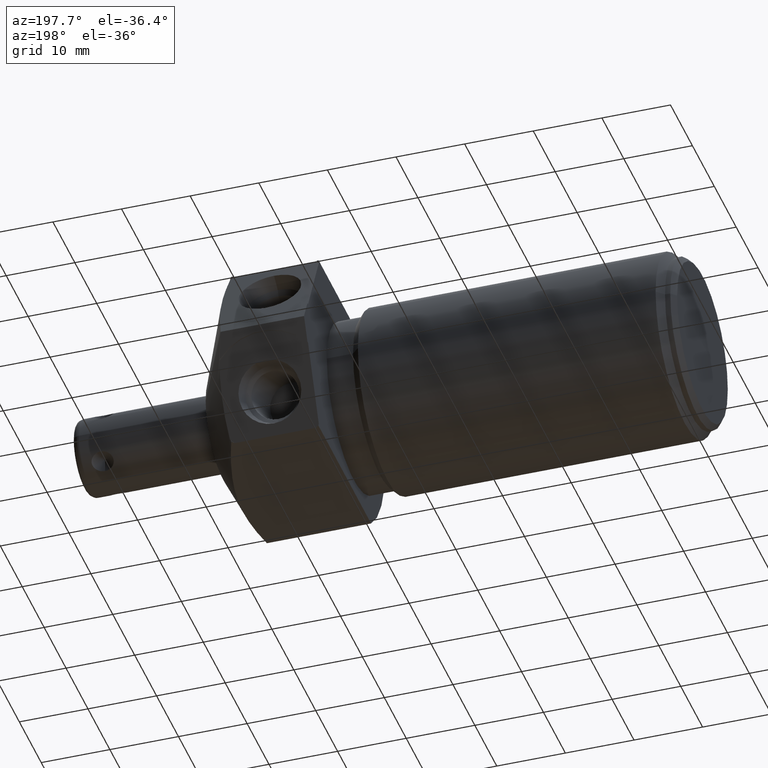
[diagram: clean part render]
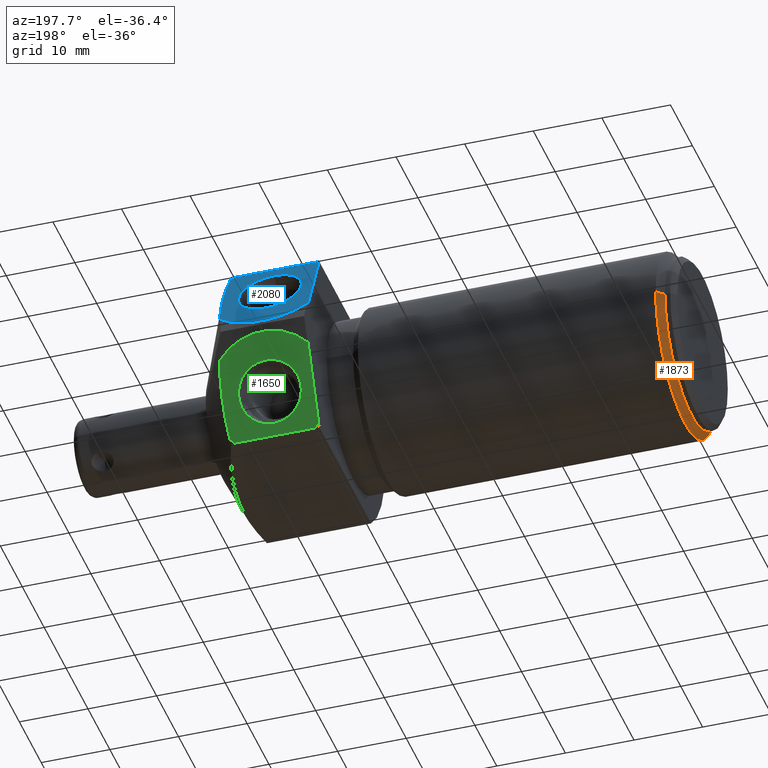
[diagram: same view with three faces highlighted in distinct colors, each labeled with its STEP entity id]
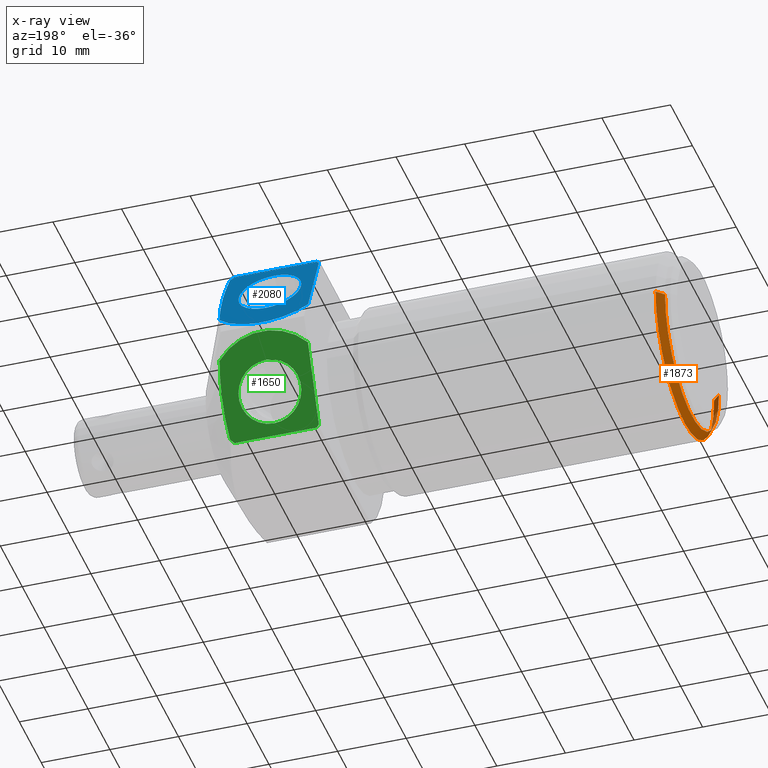
[diagram: x-ray of the same camera — body ghosted, the three highlighted faces saturated]
A machine part, auxiliary view with three faces highlighted in distinct colors.
The next image is the same camera in x-ray (body ghosted, the three faces saturated) — at least one of them is partly hidden behind the body in this view.
Their STEP definitions:

[orange] entity #1873 — the highlighted conical surface has half-angle 45 deg.
#499=DIRECTION('',(7.071067811865E-1,-7.071067811866E-1,0.E0));
#500=VECTOR('',#499,5.798275605730E-2);
#501=CARTESIAN_POINT('',(-1.94E0,-6.72E-1,0.E0));
#502=LINE('',#501,#500);
#514=DIRECTION('',(7.071067811865E-1,7.071067811866E-1,0.E0));
#515=VECTOR('',#514,5.798275605730E-2);
#516=CARTESIAN_POINT('',(-1.94E0,2.98E-1,0.E0));
#517=LINE('',#516,#515);
#529=CARTESIAN_POINT('',(-1.899E0,-1.87E-1,0.E0));
#530=DIRECTION('',(1.E0,0.E0,0.E0));
#531=DIRECTION('',(0.E0,-1.E0,0.E0));
#532=AXIS2_PLACEMENT_3D('',#529,#530,#531);
#537=CARTESIAN_POINT('',(-1.899E0,-1.87E-1,0.E0));
#538=DIRECTION('',(1.E0,0.E0,0.E0));
#539=DIRECTION('',(0.E0,0.E0,-1.E0));
#540=AXIS2_PLACEMENT_3D('',#537,#538,#539);
#545=CARTESIAN_POINT('',(-1.94E0,-1.87E-1,0.E0));
#546=DIRECTION('',(-1.E0,0.E0,0.E0));
#547=DIRECTION('',(0.E0,1.E0,0.E0));
#548=AXIS2_PLACEMENT_3D('',#545,#546,#547);
#1448=CARTESIAN_POINT('',(-1.899E0,-1.87E-1,-5.26E-1));
#1450=VERTEX_POINT('',#1448);
#1455=CARTESIAN_POINT('',(-1.94E0,-6.72E-1,0.E0));
#1456=VERTEX_POINT('',#1455);
#1457=CARTESIAN_POINT('',(-1.94E0,2.98E-1,0.E0));
#1458=VERTEX_POINT('',#1457);
#1535=CARTESIAN_POINT('',(-1.899E0,-7.13E-1,0.E0));
#1536=VERTEX_POINT('',#1535);
#1537=CARTESIAN_POINT('',(-1.899E0,3.39E-1,0.E0));
#1538=VERTEX_POINT('',#1537);
#1860=CARTESIAN_POINT('',(-1.9195E0,-1.87E-1,0.E0));
#1861=DIRECTION('',(1.E0,0.E0,0.E0));
#1862=DIRECTION('',(0.E0,-1.E0,0.E0));
#1863=AXIS2_PLACEMENT_3D('',#1860,#1861,#1862);
#1864=CONICAL_SURFACE('',#1863,5.055E-1,4.5E1);
#1865=ORIENTED_EDGE('',*,*,#1802,.T.);
#1866=ORIENTED_EDGE('',*,*,#1826,.T.);
#1867=ORIENTED_EDGE('',*,*,#1854,.F.);
#1869=ORIENTED_EDGE('',*,*,#1868,.T.);
#1870=ORIENTED_EDGE('',*,*,#1850,.T.);
#1871=EDGE_LOOP('',(#1865,#1866,#1867,#1869,#1870));
#1872=FACE_OUTER_BOUND('',#1871,.F.);
#1873=ADVANCED_FACE('',(#1872),#1864,.T.);
#533=CIRCLE('',#532,5.26E-1);
#541=CIRCLE('',#540,5.26E-1);
#549=CIRCLE('',#548,4.85E-1);
#1802=EDGE_CURVE('',#1536,#1450,#533,.T.);
#1826=EDGE_CURVE('',#1450,#1538,#541,.T.);
#1850=EDGE_CURVE('',#1456,#1536,#502,.T.);
#1854=EDGE_CURVE('',#1458,#1538,#517,.T.);
#1868=EDGE_CURVE('',#1458,#1456,#549,.T.);

[blue] entity #2080 — the highlighted planar face has unit normal (0, -0.9063, -0.4226).
#344=DIRECTION('',(0.E0,4.226182617407E-1,-9.063077870367E-1));
#345=VECTOR('',#344,4.638146181396E-1);
#346=CARTESIAN_POINT('',(0.E0,4.418505813593E-1,5.491192459967E-1));
#347=LINE('',#346,#345);
#702=CARTESIAN_POINT('',(2.5E-1,5.398588452034E-1,3.389398459160E-1));
#703=DIRECTION('',(0.E0,9.063077870367E-1,4.226182617407E-1));
#704=DIRECTION('',(7.590797192201E-1,2.751235080822E-1,-5.900042670772E-1));
#705=AXIS2_PLACEMENT_3D('',#702,#703,#704);
#718=CARTESIAN_POINT('',(2.5E-1,5.398588452034E-1,3.389398459160E-1));
#719=DIRECTION('',(0.E0,-9.063077870367E-1,-4.226182617407E-1));
#720=DIRECTION('',(-6.904539425741E-1,-3.057120583802E-1,6.556016248796E-1));
#721=AXIS2_PLACEMENT_3D('',#718,#719,#720);
#726=CARTESIAN_POINT('',(5.088461842540E-1,4.460417289474E-1,
5.401313009894E-1));
#727=CARTESIAN_POINT('',(5.119136720244E-1,4.564632112213E-1,
5.177823601310E-1));
#728=CARTESIAN_POINT('',(5.170971932528E-1,4.773055134610E-1,
4.730858987386E-1));
#729=CARTESIAN_POINT('',(5.218417056262E-1,5.085565197783E-1,
4.060678994181E-1));
#730=CARTESIAN_POINT('',(5.234414757905E-1,5.398603729593E-1,
3.389365696330E-1));
#731=CARTESIAN_POINT('',(5.218414140613E-1,5.711639626308E-1,
2.718058049455E-1));
#732=CARTESIAN_POINT('',(5.170966721897E-1,6.024145862594E-1,
2.047886263038E-1));
#733=CARTESIAN_POINT('',(5.119133954888E-1,6.232554186874E-1,
1.600953169329E-1));
#734=CARTESIAN_POINT('',(5.088461842540E-1,6.336759614594E-1,
1.377483908427E-1));
#739=CARTESIAN_POINT('',(2.5E-1,5.398588452034E-1,3.389398459160E-1));
#740=DIRECTION('',(0.E0,-9.063077870367E-1,-4.226182617407E-1));
#741=DIRECTION('',(7.590797192201E-1,-2.751235080822E-1,5.900042670772E-1));
#742=AXIS2_PLACEMENT_3D('',#739,#740,#741);
#747=CARTESIAN_POINT('',(2.5E-1,5.398588452034E-1,3.389398459160E-1));
#748=DIRECTION('',(0.E0,9.063077870367E-1,4.226182617407E-1));
#749=DIRECTION('',(0.E0,4.226182617407E-1,-9.063077870366E-1));
#750=AXIS2_PLACEMENT_3D('',#747,#748,#749);
#755=CARTESIAN_POINT('',(2.5E-1,5.398588452034E-1,3.389398459160E-1));
#756=DIRECTION('',(0.E0,9.063077870367E-1,4.226182617407E-1));
#757=DIRECTION('',(0.E0,-4.226182617407E-1,9.063077870366E-1));
#758=AXIS2_PLACEMENT_3D('',#755,#756,#757);
#763=DIRECTION('',(1.E0,0.E0,0.E0));
#764=VECTOR('',#763,4.708895888355E-1);
#765=CARTESIAN_POINT('',(1.455520558224E-2,4.356110332957E-1,5.625E-1));
#766=LINE('',#765,#764);
#1463=CARTESIAN_POINT('',(1.455520558224E-2,4.356110332957E-1,5.625E-1));
#1464=CARTESIAN_POINT('',(4.854447944178E-1,4.356110332957E-1,5.625E-1));
#1465=VERTEX_POINT('',#1463);
#1466=VERTEX_POINT('',#1464);
#1468=CARTESIAN_POINT('',(0.E0,4.418505813593E-1,5.491192459967E-1));
#1469=VERTEX_POINT('',#1468);
#1482=CARTESIAN_POINT('',(2.5E-1,6.155075140550E-1,1.767107520365E-1));
#1483=CARTESIAN_POINT('',(2.5E-1,4.642101763518E-1,5.011689397956E-1));
#1484=VERTEX_POINT('',#1482);
#1485=VERTEX_POINT('',#1483);
#1512=CARTESIAN_POINT('',(0.E0,6.378671090474E-1,1.287604458354E-1));
#1513=VERTEX_POINT('',#1512);
#1518=VERTEX_POINT('',#726);
#1519=VERTEX_POINT('',#734);
#2059=CARTESIAN_POINT('',(2.5E-1,5.398588452034E-1,3.389398459160E-1));
#2060=DIRECTION('',(0.E0,-9.063077870367E-1,-4.226182617407E-1));
#2061=DIRECTION('',(0.E0,4.226182617407E-1,-9.063077870367E-1));
#2062=AXIS2_PLACEMENT_3D('',#2059,#2060,#2061);
#2063=PLANE('',#2062);
#2065=ORIENTED_EDGE('',*,*,#2064,.F.);
#2066=ORIENTED_EDGE('',*,*,#2023,.T.);
#2067=ORIENTED_EDGE('',*,*,#1727,.T.);
#2068=ORIENTED_EDGE('',*,*,#2035,.F.);
#2070=ORIENTED_EDGE('',*,*,#2069,.F.);
#2071=ORIENTED_EDGE('',*,*,#2051,.T.);
#2072=EDGE_LOOP('',(#2065,#2066,#2067,#2068,#2070,#2071));
#2073=FACE_OUTER_BOUND('',#2072,.F.);
#2075=ORIENTED_EDGE('',*,*,#2074,.T.);
#2077=ORIENTED_EDGE('',*,*,#2076,.T.);
#2078=EDGE_LOOP('',(#2075,#2077));
#2079=FACE_BOUND('',#2078,.F.);
#2080=ADVANCED_FACE('',(#2073,#2079),#2063,.F.);
#706=CIRCLE('',#705,3.41E-1);
#722=CIRCLE('',#721,3.41E-1);
#735=B_SPLINE_CURVE_WITH_KNOTS('',3,(#726,#727,#728,#729,#730,#731,#732,#733,
#734),.UNSPECIFIED.,.F.,.F.,(4,1,1,1,1,1,4),(0.E0,1.666666666667E-1,
3.333333333333E-1,5.E-1,6.666666666667E-1,8.333333333333E-1,1.E0),
.UNSPECIFIED.);
#743=CIRCLE('',#742,3.41E-1);
#751=CIRCLE('',#750,1.79E-1);
#759=CIRCLE('',#758,1.79E-1);
#1727=EDGE_CURVE('',#1469,#1513,#347,.T.);
#2023=EDGE_CURVE('',#1465,#1469,#722,.T.);
#2035=EDGE_CURVE('',#1519,#1513,#706,.T.);
#2051=EDGE_CURVE('',#1518,#1466,#743,.T.);
#2064=EDGE_CURVE('',#1465,#1466,#766,.T.);
#2069=EDGE_CURVE('',#1518,#1519,#735,.T.);
#2074=EDGE_CURVE('',#1484,#1485,#751,.T.);
#2076=EDGE_CURVE('',#1485,#1484,#759,.T.);

[green] entity #1650 — the highlighted planar face has unit normal (0, -0.9063, 0.4226).
#180=CARTESIAN_POINT('',(2.5E-1,5.398588452034E-1,-3.389398459160E-1));
#181=DIRECTION('',(0.E0,-9.063077870366E-1,4.226182617407E-1));
#182=DIRECTION('',(6.904539425741E-1,-3.057120583802E-1,-6.556016248796E-1));
#183=AXIS2_PLACEMENT_3D('',#180,#181,#182);
#188=CARTESIAN_POINT('',(5.088461842540E-1,6.336759614594E-1,
-1.377483908427E-1));
#189=CARTESIAN_POINT('',(5.119136720244E-1,6.232544791855E-1,
-1.600973317011E-1));
#190=CARTESIAN_POINT('',(5.170971932528E-1,6.024121769458E-1,
-2.047937930934E-1));
#191=CARTESIAN_POINT('',(5.218417056262E-1,5.711611706284E-1,
-2.718117924140E-1));
#192=CARTESIAN_POINT('',(5.234414757905E-1,5.398573174475E-1,
-3.389431221991E-1));
#193=CARTESIAN_POINT('',(5.218414140613E-1,5.085537277759E-1,
-4.060738868866E-1));
#194=CARTESIAN_POINT('',(5.170966721897E-1,4.773031041474E-1,
-4.730910655283E-1));
#195=CARTESIAN_POINT('',(5.119133954888E-1,4.564622717194E-1,
-5.177843748992E-1));
#196=CARTESIAN_POINT('',(5.088461842540E-1,4.460417289474E-1,
-5.401313009894E-1));
#201=CARTESIAN_POINT('',(2.5E-1,5.398588452034E-1,-3.389398459160E-1));
#202=DIRECTION('',(0.E0,-9.063077870366E-1,4.226182617407E-1));
#203=DIRECTION('',(-7.331378299120E-1,-2.874142634723E-1,-6.163618770695E-1));
#204=AXIS2_PLACEMENT_3D('',#201,#202,#203);
#209=CARTESIAN_POINT('',(2.5E-1,5.398588452034E-1,-3.389398459160E-1));
#210=DIRECTION('',(0.E0,9.063077870366E-1,-4.226182617407E-1));
#211=DIRECTION('',(0.E0,-4.226182617407E-1,-9.063077870366E-1));
#212=AXIS2_PLACEMENT_3D('',#209,#210,#211);
#217=CARTESIAN_POINT('',(2.5E-1,5.398588452034E-1,-3.389398459160E-1));
#218=DIRECTION('',(0.E0,9.063077870366E-1,-4.226182617407E-1));
#219=DIRECTION('',(0.E0,4.226182617407E-1,9.063077870366E-1));
#220=AXIS2_PLACEMENT_3D('',#217,#218,#219);
#225=DIRECTION('',(1.E0,0.E0,0.E0));
#226=VECTOR('',#225,4.708895888355E-1);
#227=CARTESIAN_POINT('',(1.455520558224E-2,4.356110332957E-1,-5.625E-1));
#228=LINE('',#227,#226);
#285=CARTESIAN_POINT('',(2.5E-1,5.398588452034E-1,-3.389398459160E-1));
#286=DIRECTION('',(0.E0,9.063077870366E-1,-4.226182617407E-1));
#287=DIRECTION('',(-7.331378299120E-1,2.874142634723E-1,6.163618770695E-1));
#288=AXIS2_PLACEMENT_3D('',#285,#286,#287);
#309=DIRECTION('',(0.E0,-4.226182617407E-1,-9.063077870366E-1));
#310=VECTOR('',#309,4.638146181396E-1);
#311=CARTESIAN_POINT('',(0.E0,6.378671090474E-1,-1.287604458354E-1));
#312=LINE('',#311,#310);
#1486=CARTESIAN_POINT('',(1.455520558224E-2,4.356110332957E-1,-5.625E-1));
#1487=CARTESIAN_POINT('',(4.854447944178E-1,4.356110332957E-1,-5.625E-1));
#1488=VERTEX_POINT('',#1486);
#1489=VERTEX_POINT('',#1487);
#1494=CARTESIAN_POINT('',(5.088461842540E-1,4.460417289474E-1,
-5.401313009894E-1));
#1495=VERTEX_POINT('',#1494);
#1508=CARTESIAN_POINT('',(2.5E-1,4.642101763518E-1,-5.011689397956E-1));
#1509=CARTESIAN_POINT('',(2.5E-1,6.155075140550E-1,-1.767107520365E-1));
#1510=VERTEX_POINT('',#1508);
#1511=VERTEX_POINT('',#1509);
#1521=CARTESIAN_POINT('',(0.E0,6.378671090474E-1,-1.287604458354E-1));
#1522=CARTESIAN_POINT('',(0.E0,4.418505813593E-1,-5.491192459967E-1));
#1523=VERTEX_POINT('',#1521);
#1524=VERTEX_POINT('',#1522);
#1529=VERTEX_POINT('',#188);
#1626=CARTESIAN_POINT('',(2.5E-1,5.398588452034E-1,-3.389398459160E-1));
#1627=DIRECTION('',(0.E0,-9.063077870366E-1,4.226182617407E-1));
#1628=DIRECTION('',(0.E0,-4.226182617407E-1,-9.063077870366E-1));
#1629=AXIS2_PLACEMENT_3D('',#1626,#1627,#1628);
#1630=PLANE('',#1629);
#1632=ORIENTED_EDGE('',*,*,#1631,.T.);
#1634=ORIENTED_EDGE('',*,*,#1633,.T.);
#1635=ORIENTED_EDGE('',*,*,#1604,.F.);
#1637=ORIENTED_EDGE('',*,*,#1636,.F.);
#1639=ORIENTED_EDGE('',*,*,#1638,.T.);
#1641=ORIENTED_EDGE('',*,*,#1640,.T.);
#1642=EDGE_LOOP('',(#1632,#1634,#1635,#1637,#1639,#1641));
#1643=FACE_OUTER_BOUND('',#1642,.F.);
#1645=ORIENTED_EDGE('',*,*,#1644,.T.);
#1647=ORIENTED_EDGE('',*,*,#1646,.T.);
#1648=EDGE_LOOP('',(#1645,#1647));
#1649=FACE_BOUND('',#1648,.F.);
#1650=ADVANCED_FACE('',(#1643,#1649),#1630,.F.);
#184=CIRCLE('',#183,3.41E-1);
#197=B_SPLINE_CURVE_WITH_KNOTS('',3,(#188,#189,#190,#191,#192,#193,#194,#195,
#196),.UNSPECIFIED.,.F.,.F.,(4,1,1,1,1,1,4),(0.E0,1.666666666667E-1,
3.333333333333E-1,5.E-1,6.666666666667E-1,8.333333333333E-1,1.E0),
.UNSPECIFIED.);
#205=CIRCLE('',#204,3.41E-1);
#213=CIRCLE('',#212,1.79E-1);
#221=CIRCLE('',#220,1.79E-1);
#289=CIRCLE('',#288,3.41E-1);
#1604=EDGE_CURVE('',#1529,#1495,#197,.T.);
#1631=EDGE_CURVE('',#1488,#1489,#228,.T.);
#1633=EDGE_CURVE('',#1489,#1495,#184,.T.);
#1636=EDGE_CURVE('',#1523,#1529,#289,.T.);
#1638=EDGE_CURVE('',#1523,#1524,#312,.T.);
#1640=EDGE_CURVE('',#1524,#1488,#205,.T.);
#1644=EDGE_CURVE('',#1510,#1511,#213,.T.);
#1646=EDGE_CURVE('',#1511,#1510,#221,.T.);